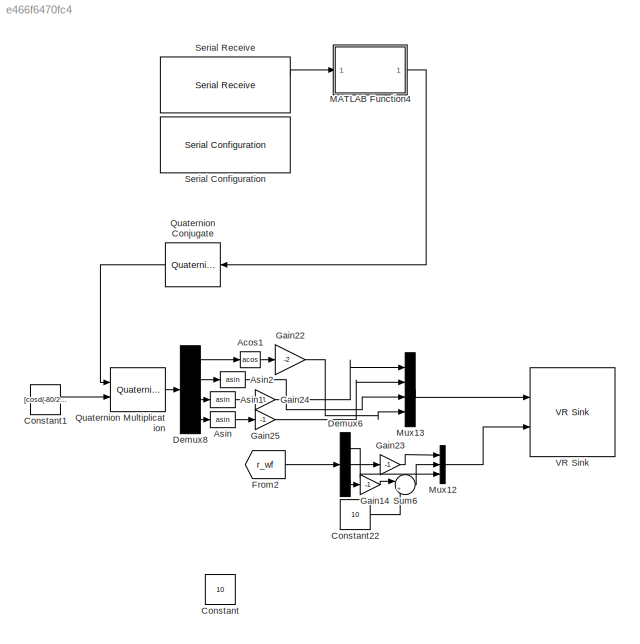
MODEL slx_e466f6470fc4
KIND model
CONFIG AbsTol = auto
CONFIG EnableMultiTasking = off
CONFIG FixedStep = auto
CONFIG MaxStep = auto
CONFIG MinStep = auto
CONFIG RelTol = 1e-3
CONFIG SampleTimeConstraint = Unconstrained
CONFIG Solver = VariableStepAuto
CONFIG SolverName = VariableStepAuto
CONFIG StartTime = 0.0
CONFIG StopTime = inf
BLOCK [Trigonometry] Acos1
  Operator = acos
  Ports = [1, 1]
BLOCK [Trigonometry] Asin
  Operator = asin
  Ports = [1, 1]
BLOCK [Trigonometry] Asin1
  Operator = asin
  Ports = [1, 1]
BLOCK [Trigonometry] Asin2
  Operator = asin
  Ports = [1, 1]
BLOCK [Constant] Constant
  Value = 10
BLOCK [Constant] Constant1
  Value = [cosd(-80/2),0,0,sind(-80/2)]
BLOCK [Constant] Constant22
  Value = 10
BLOCK [Demux] Demux6
  DisplayOption = bar
  Outputs = 3
  Ports = [1, 3]
BLOCK [Demux] Demux8
  DisplayOption = bar
  Ports = [1, 4]
BLOCK [From] From2
  GotoTag = r_wf
BLOCK [Gain] Gain14
  Gain = -1
  OutDataTypeStr = Inherit: Inherit via internal rule
  ParamDataTypeStr = Inherit: Inherit via internal rule
  SaturateOnIntegerOverflow = off
BLOCK [Gain] Gain22
  Gain = -2
  OutDataTypeStr = Inherit: Inherit via internal rule
  ParamDataTypeStr = Inherit: Inherit via internal rule
  SaturateOnIntegerOverflow = off
BLOCK [Gain] Gain23
  Gain = -1
  OutDataTypeStr = Inherit: Inherit via internal rule
  ParamDataTypeStr = Inherit: Inherit via internal rule
  SaturateOnIntegerOverflow = off
BLOCK [Gain] Gain24
  Gain = -1
  OutDataTypeStr = Inherit: Inherit via internal rule
  ParamDataTypeStr = Inherit: Inherit via internal rule
  SaturateOnIntegerOverflow = off
BLOCK [Gain] Gain25
  Gain = -1
  OutDataTypeStr = Inherit: Inherit via internal rule
  ParamDataTypeStr = Inherit: Inherit via internal rule
  SaturateOnIntegerOverflow = off
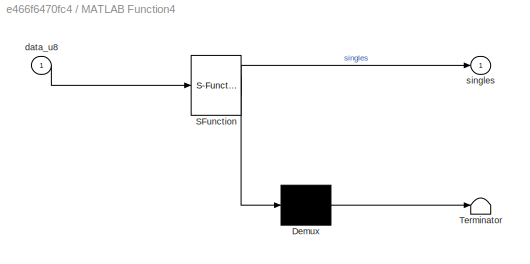
BLOCK [SubSystem] MATLAB Function4
  ErrorFcn = Stateflow.Translate.translate
  PermitHierarchicalResolution = ExplicitOnly
  Ports = [1, 1]
  RequestExecContextInheritance = off
  SFBlockType = MATLAB Function
  TreatAsAtomicUnit = on
BLOCK [Demux] MATLAB Function4/ Demux 
  Outputs = 1
  Ports = [1, 1]
BLOCK [S-Function] MATLAB Function4/ SFunction 
  EnableBusSupport = on
  FunctionName = sf_sfun
  PortCounts = [1 2]
  Ports = [1, 2]
  SFcnIsStateOwnerBlock = off
  SFunctionDeploymentMode = off
  Tag = Stateflow S-Function PX4_to_sim 25
BLOCK [Terminator] MATLAB Function4/ Terminator 
BLOCK [Inport] MATLAB Function4/data_u8
  IconDisplay = Port number
BLOCK [Outport] MATLAB Function4/singles
  IconDisplay = Port number
BLOCK [Mux] Mux12
  DisplayOption = bar
  Inputs = 3
  Ports = [3, 1]
BLOCK [Mux] Mux13
  DisplayOption = bar
  Ports = [4, 1]
BLOCK [Reference] Quaternion Conjugate  REF=aerolibutil/Quaternion
Conjugate
  Ports = [1, 1]
  SourceBlock = aerolibutil/Quaternion\nConjugate
  SourceProductBaseCode = AE
  SourceProductName = Aerospace Blockset
  SourceType = Quaternion Conjugate
BLOCK [Reference] Quaternion Multiplication  REF=aerolibutil/Quaternion
Multiplication
  Ports = [2, 1]
  SourceBlock = aerolibutil/Quaternion\nMultiplication
  SourceProductBaseCode = AE
  SourceProductName = Aerospace Blockset
  SourceType = Quaternion Multiplication
BLOCK [Reference] Serial Configuration  REF=instrumentlib/Serial Configuration
  Ports = []
  Priority = -200000
  SourceBlock = instrumentlib/Serial Configuration
  SourceProductBaseCode = IC
  SourceProductName = Instrument Control Toolbox
  SourceType = Serial Configuration
BLOCK [Reference] Serial Receive  REF=instrumentlib/Serial Receive
  Ports = [0, 2]
  SourceBlock = instrumentlib/Serial Receive
  SourceProductBaseCode = IC
  SourceProductName = Instrument Control Toolbox
  SourceType = Serial Receive
BLOCK [Sum] Sum6
  IconShape = round
  InputSameDT = off
  Inputs = |++
  OutDataTypeStr = Inherit: Inherit via internal rule
  Ports = [2, 1]
  SaturateOnIntegerOverflow = off
BLOCK [Reference] VR Sink  REF=vrlib/VR Sink
  InstantiateOnLoad = on
  Ports = [2, 1]
  SourceBlock = vrlib/VR Sink
  SourceProductBaseCode = VR
  SourceProductName = Simulink 3D Animation
  SourceType = Virtual Reality Sink
LINE Acos1:1 -> Gain22:1
LINE Asin1:1 -> Gain24:1
LINE Asin2:1 -> Mux13:3
LINE Asin:1 -> Gain25:1
LINE Constant1:1 -> Quaternion Multiplication:2
LINE Constant22:1 -> Sum6:2
LINE Demux6:1 -> Mux12:3
LINE Demux6:2 -> Gain23:1
LINE Demux6:3 -> Gain14:1
LINE Demux8:1 -> Acos1:1
LINE Demux8:2 -> Asin2:1
LINE Demux8:3 -> Asin1:1
LINE Demux8:4 -> Asin:1
LINE From2:1 -> Demux6:1
LINE Gain14:1 -> Sum6:1
LINE Gain22:1 -> Mux13:4
LINE Gain23:1 -> Mux12:1
LINE Gain24:1 -> Mux13:1
LINE Gain25:1 -> Mux13:2
LINE MATLAB Function4:1 -> Quaternion Conjugate:1
LINE Mux12:1 -> VR Sink:2
LINE Mux13:1 -> VR Sink:1
LINE Quaternion Conjugate:1 -> Quaternion Multiplication:1
LINE Quaternion Multiplication:1 -> Demux8:1
LINE Serial Receive:1 -> MATLAB Function4:1
LINE Sum6:1 -> Mux12:2
CHART MATLAB Function4 states=1 transitions=1
  STATE_LABEL 'eML_blk_kernel()'
  STATE_LABEL "SCRIPT:\nfunction singles = bytes2singles(data_u8)\n\nsingles = single(zeros(1,4));\nsingles = typecast(uint8(data_u8),'single');\n"
